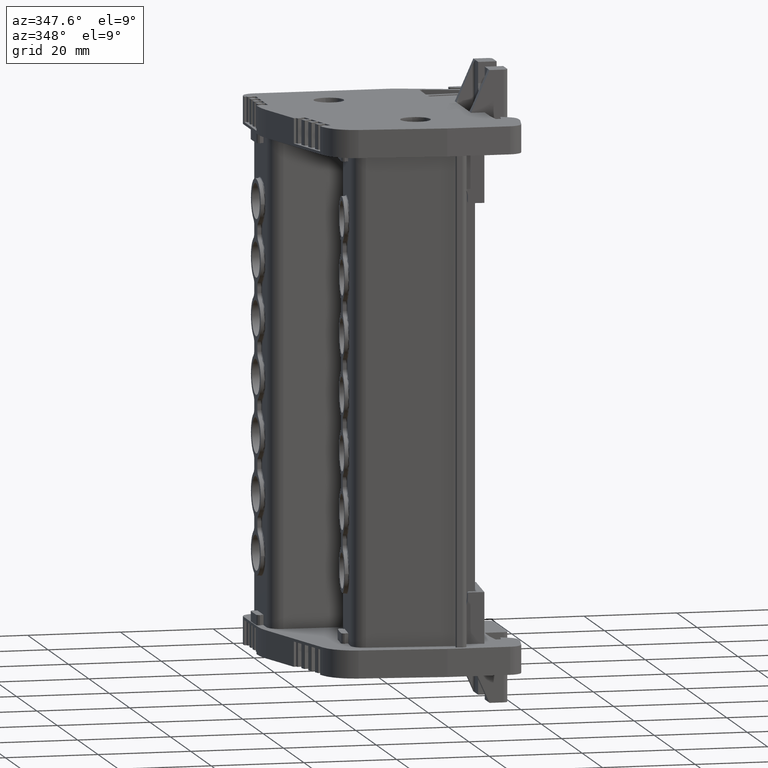
[diagram: clean part render]
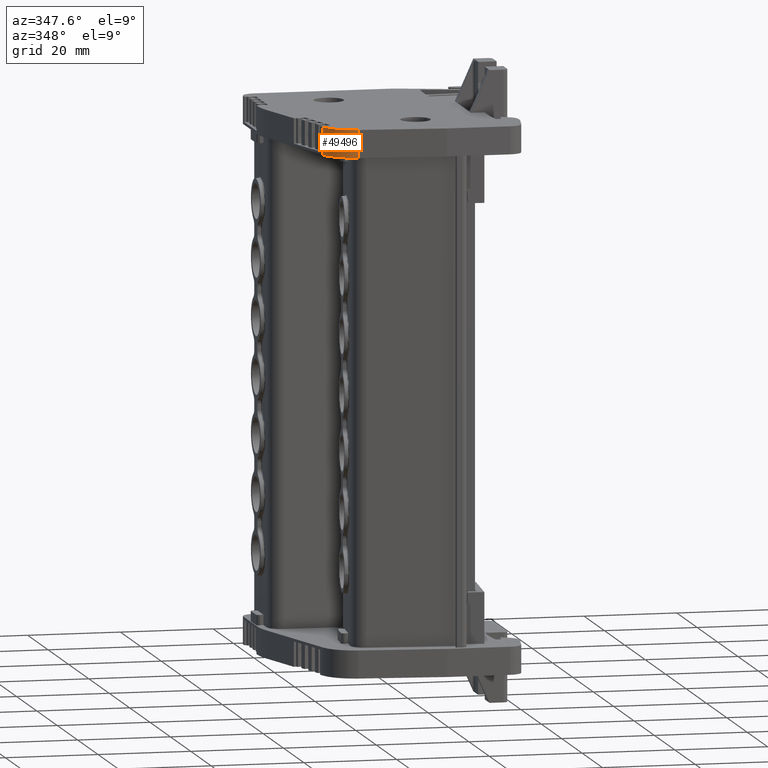
[diagram: same view with one face highlighted and labeled with its STEP entity id]
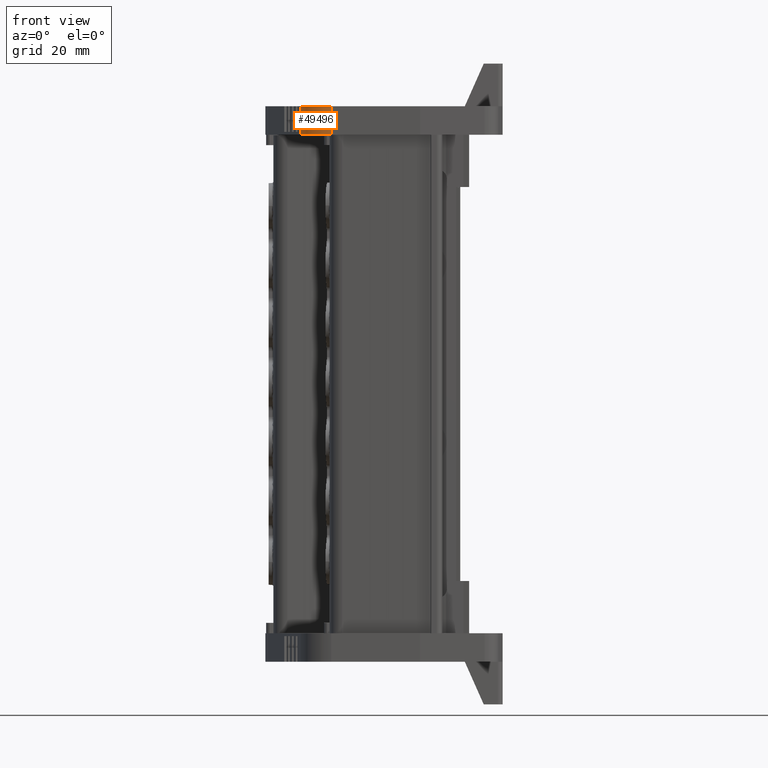
[diagram: same view with one face highlighted and labeled with its STEP entity id]
A machine part, auxiliary view. The second image highlights one B-rep face of the part: STEP entity #49496.
A second angle (front view) of the same face is appended — the face is thin or edge-on in the first view.
In plain terms, the highlighted cylindrical surface (edge-blend (fillet) strip) has radius 7.49 mm, axis along (0, 0, 1).
Its self-contained STEP definition (entity closure, byte-faithful):
#566 = CARTESIAN_POINT ( 'NONE',  ( 1880.230150523130100, 758.3933102740859300, 111.0203038005997800 ) ) ;
#608 = CARTESIAN_POINT ( 'NONE',  ( 1873.778260529240000, 763.9037252480650300, 111.0203038005997800 ) ) ;
#3115 = CARTESIAN_POINT ( 'NONE',  ( 1873.778260529240000, 763.9037252480650300, 111.0203038005997800 ) ) ;
#3120 = LINE ( 'NONE', #3115, #69408 ) ;
#3137 = DIRECTION ( 'NONE',  ( -0.0000000000000000000, -0.0000000000000000000, -1.000000000000000000 ) ) ;
#7221 = CIRCLE ( 'NONE', #7224, 7.489999999999996700 ) ;
#7224 = AXIS2_PLACEMENT_3D ( 'NONE', #9640, #9680, #9666 ) ;
#9640 = CARTESIAN_POINT ( 'NONE',  ( 1881.013044452514800, 765.8422818202338900, 117.0095433988220900 ) ) ;
#9666 = DIRECTION ( 'NONE',  ( 1.000000000000000000, -1.482273731141731600E-014, 0.0000000000000000000 ) ) ;
#9680 = DIRECTION ( 'NONE',  ( 0.0000000000000000000, 0.0000000000000000000, -1.000000000000000000 ) ) ;
#11330 = VECTOR ( 'NONE', #11954, 1000.000000000000000 ) ;
#11946 = LINE ( 'NONE', #11949, #11330 ) ;
#11949 = CARTESIAN_POINT ( 'NONE',  ( 1880.230150523130100, 758.3933102740859300, 111.0203038005997800 ) ) ;
#11954 = DIRECTION ( 'NONE',  ( 0.0000000000000000000, 0.0000000000000000000, 1.000000000000000000 ) ) ;
#21986 = AXIS2_PLACEMENT_3D ( 'NONE', #25776, #25817, #25800 ) ;
#22017 = CIRCLE ( 'NONE', #21986, 7.489999999999996700 ) ;
#25776 = CARTESIAN_POINT ( 'NONE',  ( 1881.013044452514800, 765.8422818202338900, 111.0203038005997800 ) ) ;
#25800 = DIRECTION ( 'NONE',  ( 1.000000000000000000, 0.0000000000000000000, 0.0000000000000000000 ) ) ;
#25817 = DIRECTION ( 'NONE',  ( -0.0000000000000000000, -0.0000000000000000000, 1.000000000000000000 ) ) ;
#32962 = EDGE_LOOP ( 'NONE', ( #37954, #37889, #37980, #37937 ) ) ;
#33643 = EDGE_CURVE ( 'NONE', #53339, #57146, #3120, .T. ) ;
#34623 = EDGE_CURVE ( 'NONE', #53226, #53339, #7221, .T. ) ;
#35217 = EDGE_CURVE ( 'NONE', #57172, #53226, #11946, .T. ) ;
#37889 = ORIENTED_EDGE ( 'NONE', *, *, #35217, .T. ) ;
#37937 = ORIENTED_EDGE ( 'NONE', *, *, #33643, .T. ) ;
#37954 = ORIENTED_EDGE ( 'NONE', *, *, #42314, .T. ) ;
#37980 = ORIENTED_EDGE ( 'NONE', *, *, #34623, .T. ) ;
#42314 = EDGE_CURVE ( 'NONE', #57146, #57172, #22017, .T. ) ;
#49496 = ADVANCED_FACE ( 'NONE', ( #65302 ), #65303, .T. ) ;
#53226 = VERTEX_POINT ( 'NONE', #68858 ) ;
#53339 = VERTEX_POINT ( 'NONE', #68977 ) ;
#57146 = VERTEX_POINT ( 'NONE', #608 ) ;
#57172 = VERTEX_POINT ( 'NONE', #566 ) ;
#62759 = AXIS2_PLACEMENT_3D ( 'NONE', #65305, #65276, #63897 ) ;
#63897 = DIRECTION ( 'NONE',  ( -1.000000000000000000, 0.0000000000000000000, 0.0000000000000000000 ) ) ;
#65276 = DIRECTION ( 'NONE',  ( 0.0000000000000000000, 0.0000000000000000000, 1.000000000000000000 ) ) ;
#65302 = FACE_OUTER_BOUND ( 'NONE', #32962, .T. ) ;
#65303 = CYLINDRICAL_SURFACE ( 'NONE', #62759, 7.489999999999996700 ) ;
#65305 = CARTESIAN_POINT ( 'NONE',  ( 1881.013044452514800, 765.8422818202338900, 111.0203038005997800 ) ) ;
#68858 = CARTESIAN_POINT ( 'NONE',  ( 1880.230150523130100, 758.3933102740859300, 117.0095433988220900 ) ) ;
#68977 = CARTESIAN_POINT ( 'NONE',  ( 1873.778260529240000, 763.9037252480650300, 117.0095433988220900 ) ) ;
#69408 = VECTOR ( 'NONE', #3137, 1000.000000000000000 ) ;